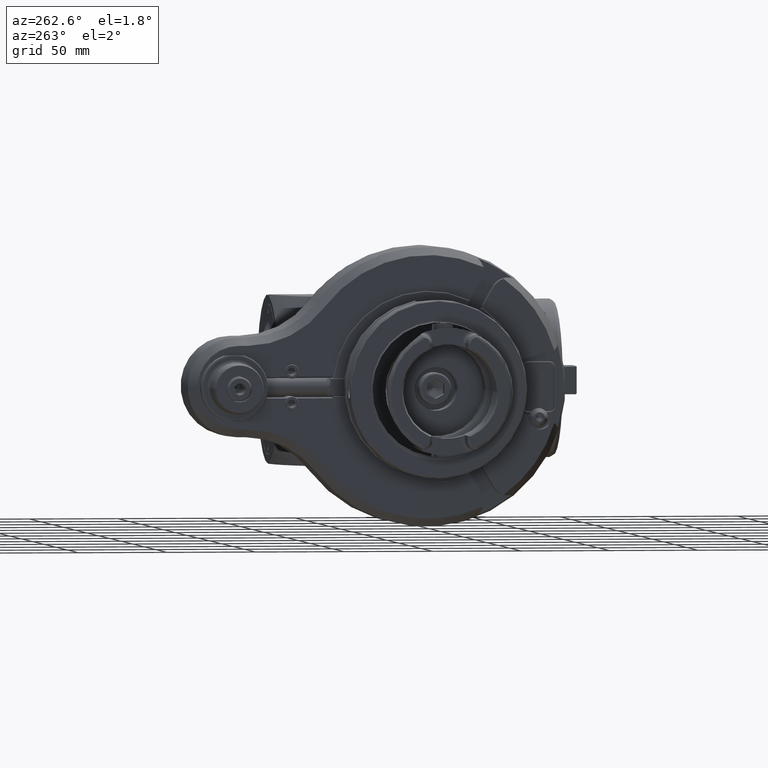
[diagram: clean part render]
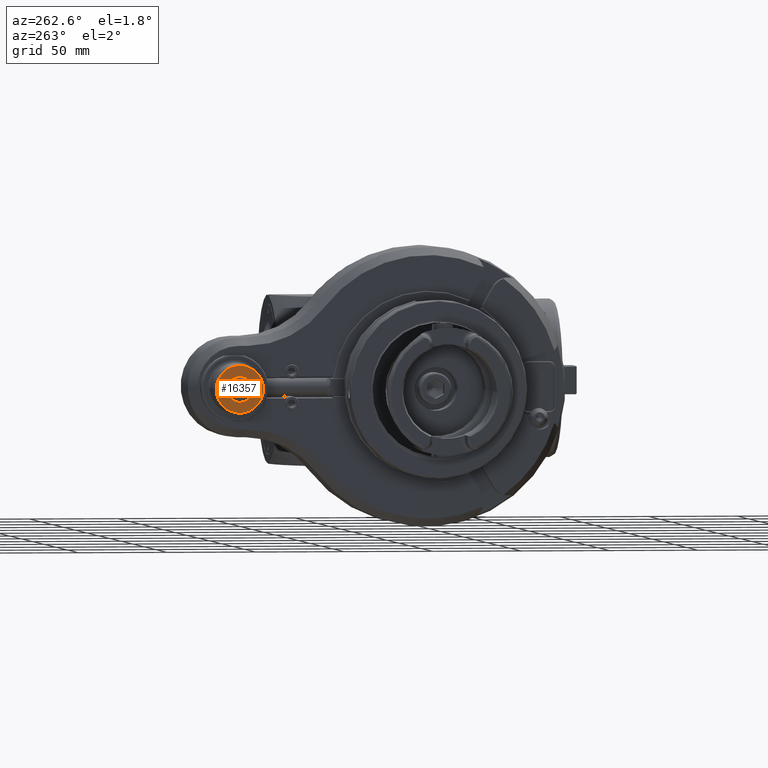
[diagram: same view with one face highlighted and labeled with its STEP entity id]
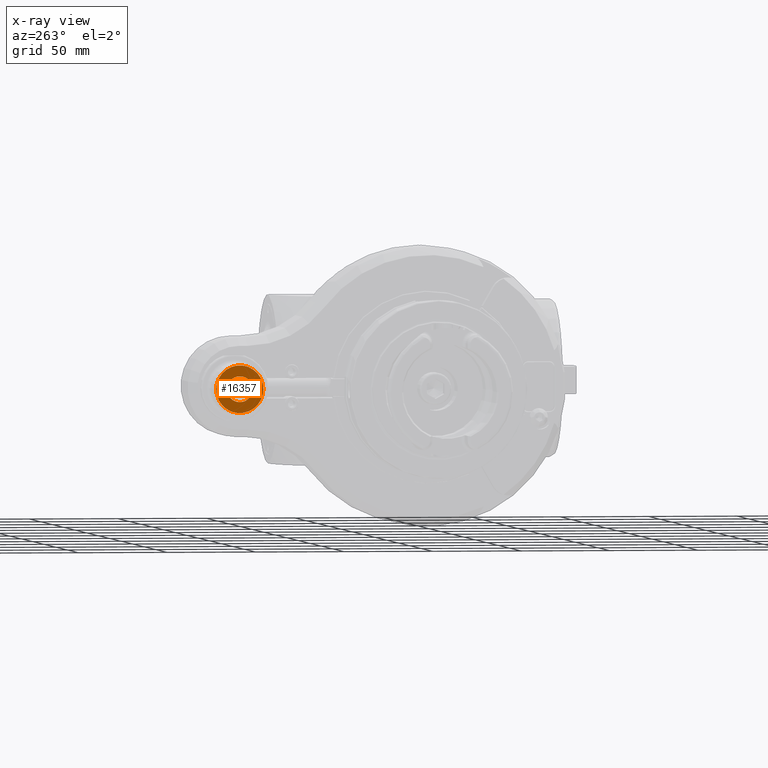
[diagram: x-ray of the same camera — body ghosted, the highlighted face saturated]
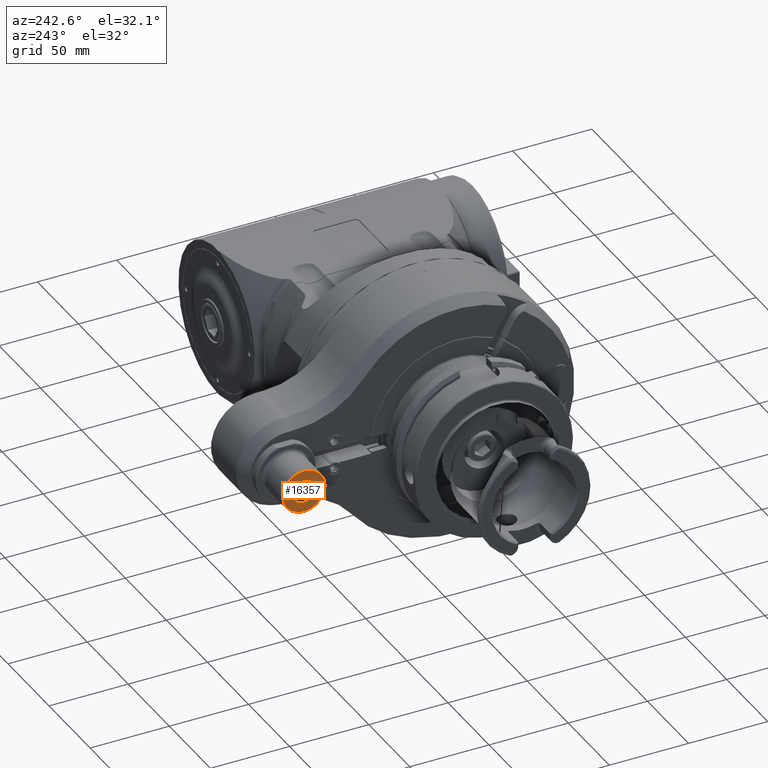
[diagram: same view with one face highlighted and labeled with its STEP entity id]
A machine part, auxiliary view. The second image highlights one B-rep face of the part: STEP entity #16357.
The next image is the same camera in x-ray: the body ghosted, the highlighted face saturated — about 0% of this face is hidden behind the body in this view.
A second angle (auxiliary view) of the same face is appended — the face is thin or edge-on in the first view.
In plain terms, the highlighted planar face has unit normal (-1, 0, -0).
Its self-contained STEP definition (entity closure, byte-faithful):
#556=FACE_BOUND('',#2278,.T.);
#912=PLANE('',#17468);
#1338=FACE_OUTER_BOUND('',#2277,.T.);
#2277=EDGE_LOOP('',(#11184));
#2278=EDGE_LOOP('',(#11185));
#6020=CIRCLE('',#17467,13.37065331211);
#6021=CIRCLE('',#17469,7.25);
#6856=VERTEX_POINT('',#24282);
#6857=VERTEX_POINT('',#24286);
#8600=EDGE_CURVE('',#6856,#6856,#6020,.T.);
#8601=EDGE_CURVE('',#6857,#6857,#6021,.T.);
#11184=ORIENTED_EDGE('',*,*,#8600,.F.);
#11185=ORIENTED_EDGE('',*,*,#8601,.T.);
#16357=ADVANCED_FACE('',(#1338,#556),#912,.T.);
#17467=AXIS2_PLACEMENT_3D('',#24284,#19373,#19374);
#17468=AXIS2_PLACEMENT_3D('',#24285,#19375,#19376);
#17469=AXIS2_PLACEMENT_3D('',#24287,#19377,#19378);
#19373=DIRECTION('center_axis',(1.,0.,0.));
#19374=DIRECTION('ref_axis',(0.,1.,0.));
#19375=DIRECTION('center_axis',(-1.,0.,0.));
#19376=DIRECTION('ref_axis',(0.,-1.,0.));
#19377=DIRECTION('center_axis',(1.,0.,0.));
#19378=DIRECTION('ref_axis',(0.,1.,0.));
#24282=CARTESIAN_POINT('',(-32.4999999999987,123.370653312102,1.63743277811751E-15));
#24284=CARTESIAN_POINT('Origin',(-32.5,110.,0.));
#24285=CARTESIAN_POINT('Origin',(-32.5,85.75,0.));
#24286=CARTESIAN_POINT('',(-32.5,102.75,8.87868929381831E-16));
#24287=CARTESIAN_POINT('Origin',(-32.5,110.,0.));